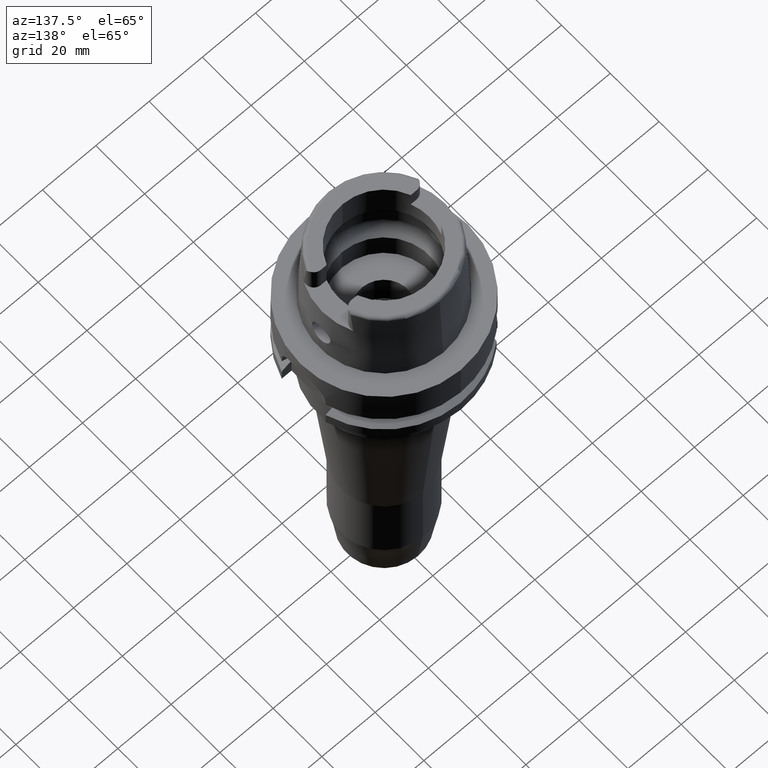
[diagram: clean part render]
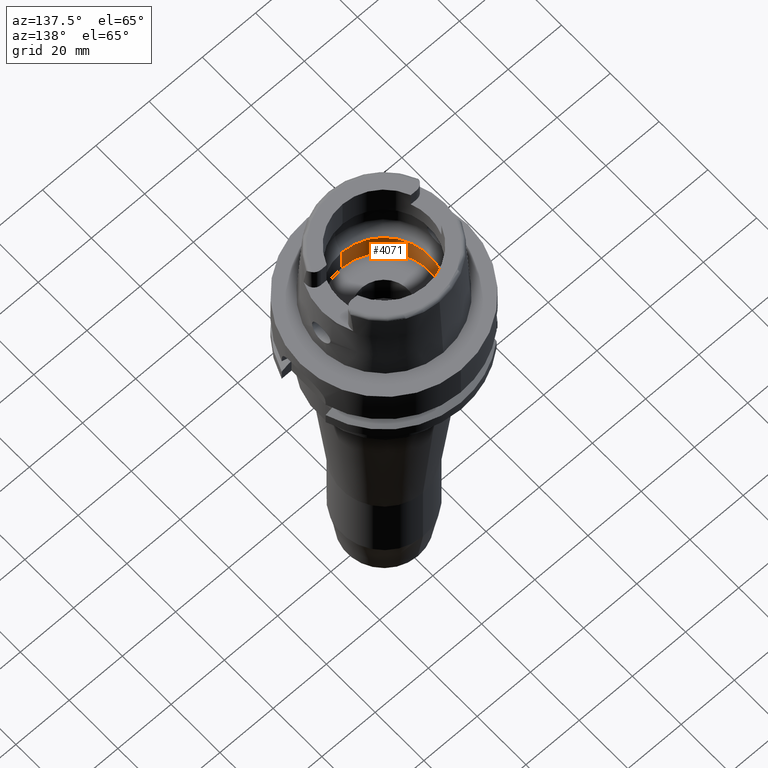
[diagram: same view with one face highlighted and labeled with its STEP entity id]
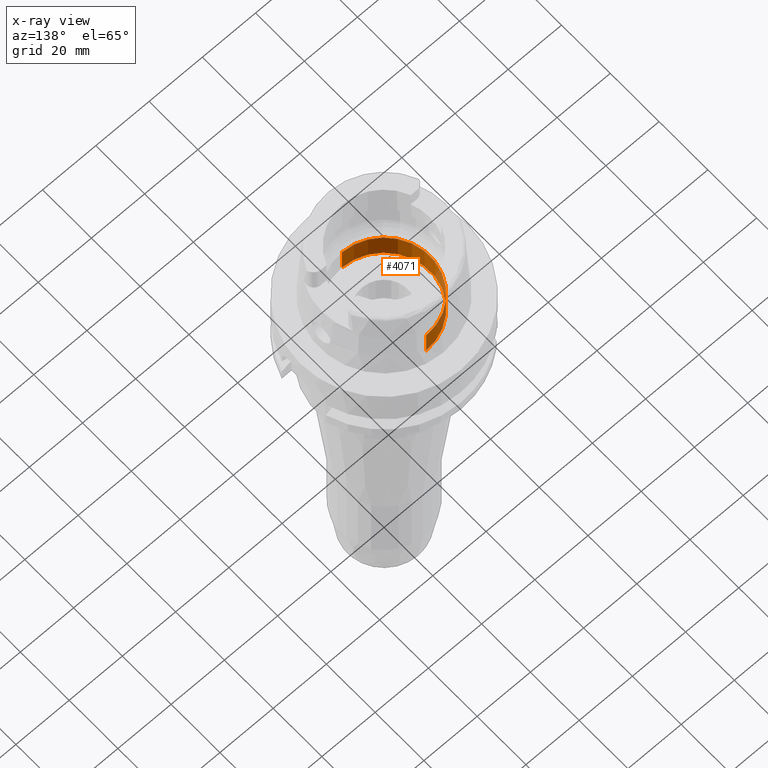
[diagram: x-ray of the same camera — body ghosted, the highlighted face saturated]
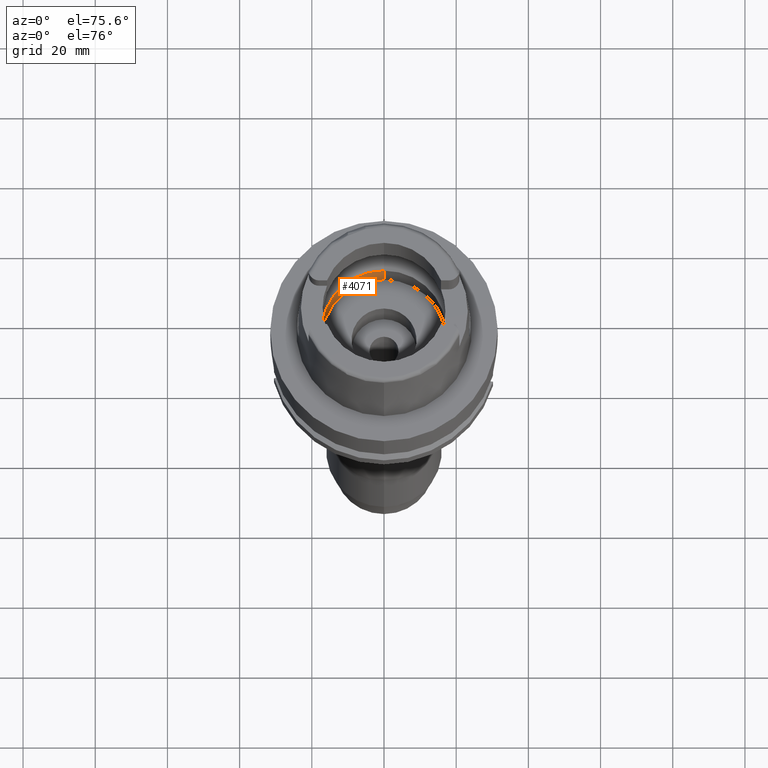
[diagram: same view with one face highlighted and labeled with its STEP entity id]
A machine part, auxiliary view. The second image highlights one B-rep face of the part: STEP entity #4071.
The next image is the same camera in x-ray: the body ghosted, the highlighted face saturated — about 12% of this face is hidden behind the body in this view.
A second angle (auxiliary view) of the same face is appended — the face is thin or edge-on in the first view.
In plain terms, the highlighted cylindrical surface (partial cylindrical patch) has radius 17.25 mm, axis along (0, 0, 1).
Its self-contained STEP definition (entity closure, byte-faithful):
#1973=CARTESIAN_POINT('',(0.E0,0.E0,-9.95E0));
#1974=DIRECTION('',(0.E0,0.E0,-1.E0));
#1975=DIRECTION('',(0.E0,-1.E0,0.E0));
#1976=AXIS2_PLACEMENT_3D('',#1973,#1974,#1975);
#2005=DIRECTION('',(0.E0,0.E0,1.E0));
#2006=VECTOR('',#2005,9.95E0);
#2007=CARTESIAN_POINT('',(0.E0,-1.725E1,-9.95E0));
#2008=LINE('',#2007,#2006);
#2012=CARTESIAN_POINT('',(0.E0,0.E0,3.126388037344E-13));
#2013=DIRECTION('',(0.E0,0.E0,-1.E0));
#2014=DIRECTION('',(0.E0,-1.E0,0.E0));
#2015=AXIS2_PLACEMENT_3D('',#2012,#2013,#2014);
#2020=DIRECTION('',(0.E0,0.E0,1.E0));
#2021=VECTOR('',#2020,9.95E0);
#2022=CARTESIAN_POINT('',(0.E0,1.725E1,-9.95E0));
#2023=LINE('',#2022,#2021);
#2412=CARTESIAN_POINT('',(0.E0,1.725E1,2.842170943040E-13));
#2413=VERTEX_POINT('',#2412);
#2414=CARTESIAN_POINT('',(0.E0,-1.725E1,2.842170943040E-13));
#2415=VERTEX_POINT('',#2414);
#2416=CARTESIAN_POINT('',(0.E0,1.725E1,-9.95E0));
#2417=VERTEX_POINT('',#2416);
#2418=CARTESIAN_POINT('',(0.E0,-1.725E1,-9.95E0));
#2419=VERTEX_POINT('',#2418);
#4057=CARTESIAN_POINT('',(0.E0,0.E0,-1.591E2));
#4058=DIRECTION('',(0.E0,0.E0,1.E0));
#4059=DIRECTION('',(0.E0,1.E0,0.E0));
#4060=AXIS2_PLACEMENT_3D('',#4057,#4058,#4059);
#4061=CYLINDRICAL_SURFACE('',#4060,1.725E1);
#4063=ORIENTED_EDGE('',*,*,#4062,.F.);
#4064=ORIENTED_EDGE('',*,*,#4046,.F.);
#4066=ORIENTED_EDGE('',*,*,#4065,.T.);
#4068=ORIENTED_EDGE('',*,*,#4067,.T.);
#4069=EDGE_LOOP('',(#4063,#4064,#4066,#4068));
#4070=FACE_OUTER_BOUND('',#4069,.F.);
#1977=CIRCLE('',#1976,1.725E1);
#2016=CIRCLE('',#2015,1.725E1);
#4046=EDGE_CURVE('',#2419,#2417,#1977,.T.);
#4062=EDGE_CURVE('',#2417,#2413,#2023,.T.);
#4065=EDGE_CURVE('',#2419,#2415,#2008,.T.);
#4067=EDGE_CURVE('',#2415,#2413,#2016,.T.);
#4071=ADVANCED_FACE('',(#4070),#4061,.F.);